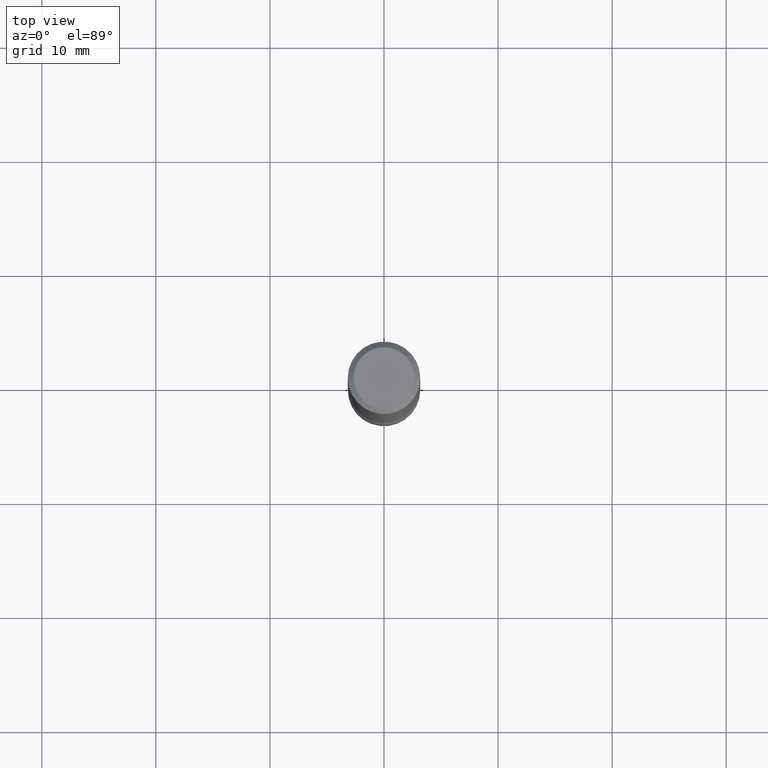
[diagram: clean part render]
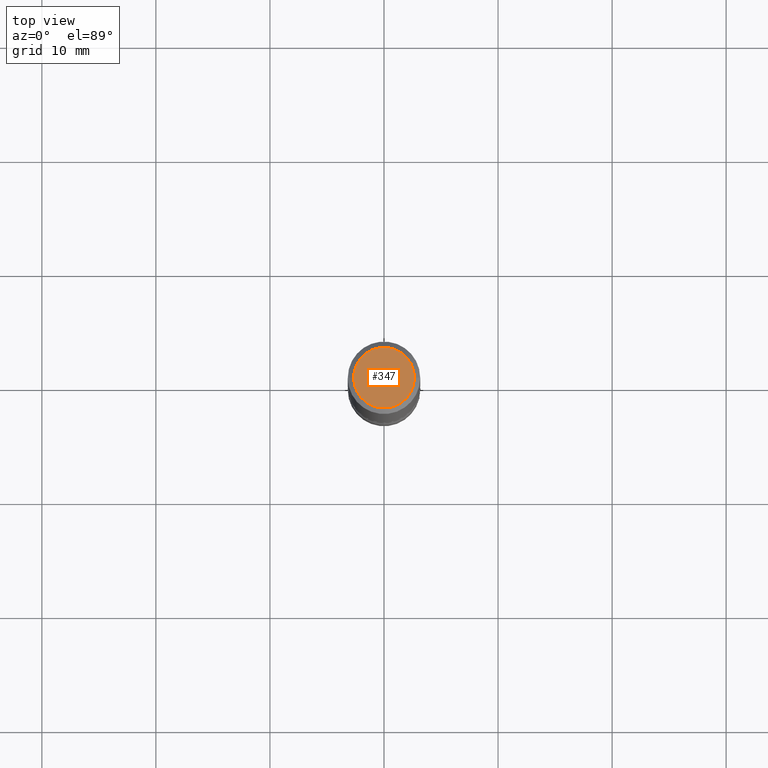
[diagram: same view with one face highlighted and labeled with its STEP entity id]
A machine part, top view. The second image highlights one B-rep face of the part: STEP entity #347.
In plain terms, the highlighted planar face has unit normal (0, -0, -1).
Its self-contained STEP definition (entity closure, byte-faithful):
#8 = CIRCLE ( 'NONE', #135, 0.1049999999999997047 ) ;
#29 = DIRECTION ( 'NONE',  ( -2.445468806185136597E-29, 3.491481338843145583E-15, 1.000000000000000000 ) ) ;
#58 = CIRCLE ( 'NONE', #247, 0.1049999999999997047 ) ;
#63 = VERTEX_POINT ( 'NONE', #208 ) ;
#64 = CARTESIAN_POINT ( 'NONE',  ( 0.1049999999999997047, -8.238720831321557908E-16, -4.695363739109907908E-17 ) ) ;
#135 = AXIS2_PLACEMENT_3D ( 'NONE', #223, #29, #466 ) ;
#178 = DIRECTION ( 'NONE',  ( -1.000000000000000000, 6.982962677686265922E-15, -4.876176775795935793E-29 ) ) ;
#208 = CARTESIAN_POINT ( 'NONE',  ( -0.1049999999999997047, 7.681258945454869124E-16, -4.695363739110977184E-17 ) ) ;
#212 = CARTESIAN_POINT ( 'NONE',  ( 1.148236555768741665E-45, -1.639377487418492057E-31, -4.695363739110452099E-17 ) ) ;
#223 = CARTESIAN_POINT ( 'NONE',  ( 1.148236555768741665E-45, -1.639377487418492057E-31, -4.695363739110452099E-17 ) ) ;
#241 = PLANE ( 'NONE',  #616 ) ;
#247 = AXIS2_PLACEMENT_3D ( 'NONE', #212, #712, #393 ) ;
#253 = EDGE_CURVE ( 'NONE', #63, #734, #58, .T. ) ;
#295 = ORIENTED_EDGE ( 'NONE', *, *, #253, .T. ) ;
#347 = ADVANCED_FACE ( 'NONE', ( #614 ), #241, .F. ) ;
#353 = CARTESIAN_POINT ( 'NONE',  ( 7.332110811570558550E-16, 0.1049999999999997047, -3.900823592740815069E-16 ) ) ;
#385 = ORIENTED_EDGE ( 'NONE', *, *, #575, .T. ) ;
#393 = DIRECTION ( 'NONE',  ( 1.000000000000000000, -6.982962677686265922E-15, 4.874400871621252228E-29 ) ) ;
#466 = DIRECTION ( 'NONE',  ( 1.000000000000000000, -6.982962677686265922E-15, 4.874400871621252228E-29 ) ) ;
#498 = EDGE_LOOP ( 'NONE', ( #295, #385 ) ) ;
#575 = EDGE_CURVE ( 'NONE', #734, #63, #8, .T. ) ;
#614 = FACE_OUTER_BOUND ( 'NONE', #498, .T. ) ;
#616 = AXIS2_PLACEMENT_3D ( 'NONE', #353, #732, #178 ) ;
#712 = DIRECTION ( 'NONE',  ( -2.445468806185136597E-29, 3.491481338843145583E-15, 1.000000000000000000 ) ) ;
#732 = DIRECTION ( 'NONE',  ( 2.438088387897960049E-29, -3.491481338843145188E-15, -1.000000000000000000 ) ) ;
#734 = VERTEX_POINT ( 'NONE', #64 ) ;